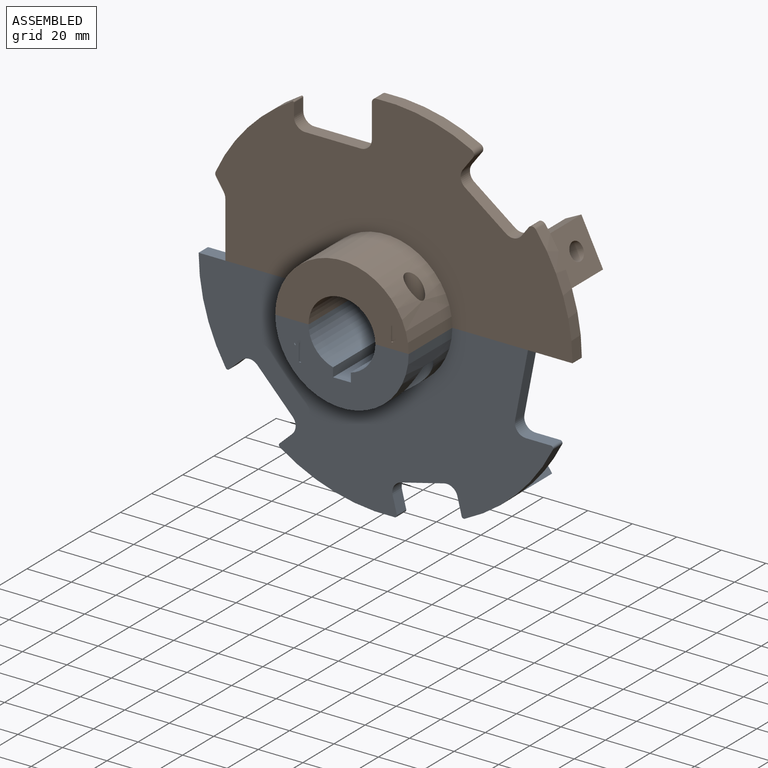
[diagram: assembled view]
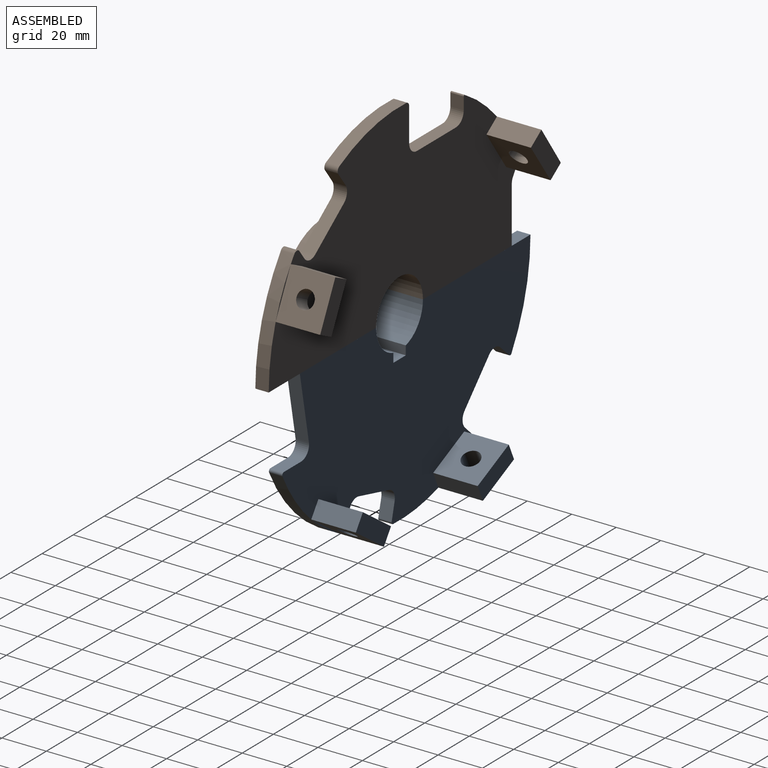
[diagram: assembled view, second angle]
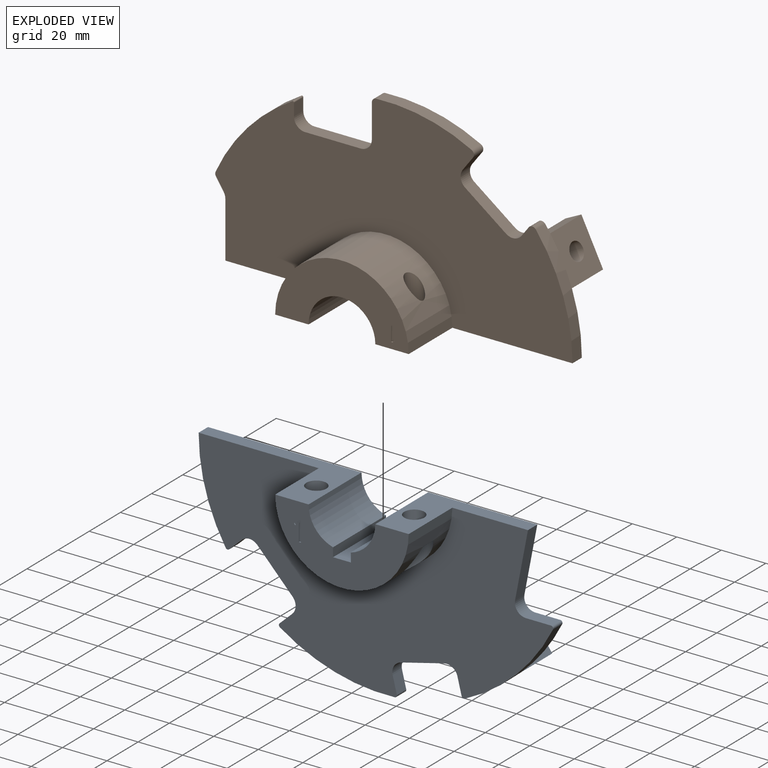
[diagram: exploded view]
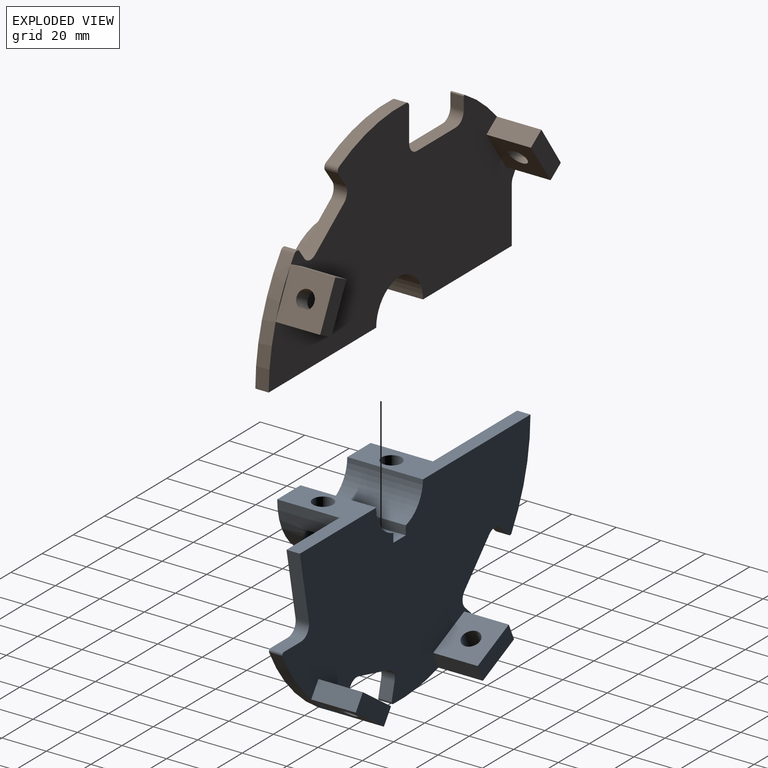
[diagram: exploded view, second angle]
ASSEMBLY  parts=2 mates=3
PART A: 62 faces, bbox 159.3x54x84 mm
  f0: plane 60x30mm, normal (0,-1,0), area 1020.1mm2, adj f1,f15,f16,f17,f18,f19,f20,f21
  f1: cylinder r=30mm len=60mm, axis (0,1,0), area 2160.8mm2, adj f0,f15,f21,f32,f48,f49,f50,f51
  f2: plane 159.3x84mm, normal (0,1,0), area 8660.3mm2, adj f4,f5,f6,f7,f8,f9,f10,f11
  f3: plane 19.97x9.22mm, normal (0,1,0), area 10.6mm2, adj f30,f39
  f4: plane 7.56x6mm, normal (0.97,0,0.24), area 46.8mm2, adj f2,f5,f31,f32
  f5: cylinder r=5mm len=6.06mm, axis (0,1,0), area 47.1mm2, adj f2,f4,f6,f32
  f6: plane 19.41x6mm, normal (0.24,0,-0.97), area 120mm2, adj f2,f5,f7,f32
  f7: cylinder r=5mm len=6.06mm, axis (0,1,0), area 47.1mm2, adj f2,f6,f8,f32
  f8: plane 7.56x6mm, normal (-0.97,0,-0.24), area 46.8mm2, adj f2,f7,f9,f32
  f9: cylinder r=1mm len=6mm, axis (0,1,0), area 10.6mm2, adj f2,f8,f10,f32
  f10: cylinder r=84mm len=39.61mm, axis (0,1,0), area 338.4mm2, adj f2,f9,f11,f32,f33
  f11: cylinder r=1mm len=6mm, axis (0,1,0), area 12.2mm2, adj f2,f10,f12,f32
  f12: plane 11.19x6mm, normal (0,0,1), area 67.1mm2, adj f2,f11,f13,f32
  f13: cylinder r=5mm len=6mm, axis (0,1,0), area 52.8mm2, adj f2,f12,f14,f32
  f14: plane 30.05x6mm, normal (0.98,0,-0.19), area 183.6mm2, adj f2,f13,f15,f32
  f15: plane 49x34mm, normal (0,0,1), area 650.4mm2, adj f0,f1,f2,f14,f16,f32,f47
  f16: cylinder r=15mm len=34mm, axis (0,1,0), area 663.4mm2, adj f0,f2,f15,f17
  f17: plane 34x4.04mm, normal (-1,0,0), area 137.5mm2, adj f0,f2,f16,f18
  f18: plane 34x8mm, normal (0,0,1), area 272mm2, adj f0,f2,f17,f19
  f19: plane 34x4.04mm, normal (1,0,0), area 137.5mm2, adj f0,f2,f18,f20
  f20: cylinder r=15mm len=34mm, axis (0,1,0), area 663.4mm2, adj f0,f2,f19,f21
  f21: plane 69x34mm, normal (0,0,1), area 770.4mm2, adj f0,f1,f2,f20,f22,f32,f46
  f22: cylinder r=84mm len=43.53mm, axis (0,1,0), area 274.6mm2, adj f2,f21,f23,f32
  f23: cylinder r=1mm len=6mm, axis (0,1,0), area 10.7mm2, adj f2,f22,f24,f32
  f24: plane 6x5.65mm, normal (0.69,0,-0.73), area 46.6mm2, adj f2,f23,f25,f32
  f25: cylinder r=5mm len=7.07mm, axis (0,1,0), area 47.1mm2, adj f2,f24,f26,f32
  f26: plane 16.72x15.8mm, normal (-0.73,0,-0.69), area 138mm2, adj f2,f25,f27,f32
  f27: cylinder r=5mm len=7.07mm, axis (0,1,0), area 47.1mm2, adj f2,f26,f28,f32
  f28: plane 6x5.65mm, normal (-0.69,0,0.73), area 46.6mm2, adj f2,f27,f29,f32
  f29: cylinder r=1mm len=6mm, axis (0,1,0), area 10.7mm2, adj f2,f28,f30,f32
  f30: cylinder r=84mm len=51.65mm, axis (0,1,0), area 327.9mm2, adj f2,f3,f29,f31,f32
  f31: cylinder r=1mm len=6mm, axis (0,1,0), area 10.6mm2, adj f2,f4,f30,f32
  f32: plane 159.3x84mm, normal (0,-1,0), area 8002.7mm2, adj f1,f4,f5,f6,f7,f8,f9,f10
  f33: plane 18.04x12.59mm, normal (0,1,0), area 10.6mm2, adj f10,f35
  f34: plane 20x6.56mm, normal (0.82,0,0.57), area 160mm2, adj f2,f35,f37,f38
  f35: plane 20x18.04mm, normal (0.57,0,-0.82), area 389.7mm2, adj f33,f34,f36,f38,f44
  f36: plane 20x6.56mm, normal (-0.82,0,-0.57), area 160mm2, adj f2,f35,f37,f38
  f37: plane 20x18.04mm, normal (-0.57,0,0.82), area 389.7mm2, adj f2,f34,f36,f38,f44
  f38: plane 22.62x19.15mm, normal (0,1,0), area 176mm2, adj f34,f35,f36,f37
  f39: plane 20x19.97mm, normal (-0.42,0,-0.91), area 389.7mm2, adj f3,f40,f42,f43,f45
  f40: plane 20x7.26mm, normal (-0.91,0,0.42), area 160mm2, adj f2,f39,f41,f43
  f41: plane 20x19.97mm, normal (0.42,0,0.91), area 389.7mm2, adj f2,f40,f42,f43,f45
  f42: plane 20x7.26mm, normal (0.91,0,-0.42), area 160mm2, adj f2,f39,f41,f43
  f43: plane 23.33x16.48mm, normal (0,1,0), area 176mm2, adj f39,f40,f41,f42
  f44: cylinder r=4mm len=11.14mm, axis (0.57,0,-0.82), area 201.1mm2, adj f35,f37
  f45: cylinder r=4mm len=10.62mm, axis (-0.42,0,-0.91), area 201.1mm2, adj f39,f41
  f46: cylinder r=4.5mm len=10mm, axis (0,0,1), area 282.7mm2, adj f21,f51
  f47: cylinder r=4.5mm len=10mm, axis (0,0,1), area 282.7mm2, adj f15,f49
  f48: cylinder r=7mm len=15.98mm, axis (0,0,1), area 395.8mm2, adj f1,f49
  f49: plane 14x13.28mm, normal (0,0,-1), area 87.3mm2, adj f1,f47,f48
  f50: cylinder r=7mm len=15.98mm, axis (0,0,1), area 395.6mm2, adj f1,f51
  f51: plane 14x13.28mm, normal (0,0,-1), area 87.3mm2, adj f1,f46,f50
  f52: plane 0.98x0.5mm, normal (0,0,1), area 0.5mm2, adj f0,f53,f60,f61
  f53: plane 8.85x0.5mm, normal (-1,0,0), area 4.4mm2, adj f0,f52,f54,f61
  f54: plane 0.85x0.5mm, normal (0,0,-1), area 0.4mm2, adj f0,f53,f55,f61
  f55: plane 2.34x1.81mm, normal (0.61,0,-0.79), area 1.5mm2, adj f0,f54,f56,f61
  f56: plane 0.69x0.53mm, normal (0.79,0,0.61), area 0.4mm2, adj f0,f55,f57,f61
  f57: extruded ~1.44x1.18mm, area 0.9mm2, adj f0,f56,f58,f61
  f58: extruded ~0.5x0.28mm, area 0.2mm2, adj f0,f57,f59,f61
  f59: extruded ~1.49x0.5mm, area 0.7mm2, adj f0,f58,f60,f61
  f60: plane 6.31x0.5mm, normal (1,0,0), area 3.2mm2, adj f0,f52,f59,f61
  f61: plane 8.85x3.19mm, normal (0,-1,0), area 10.7mm2, adj f52,f53,f54,f55,f56,f57,f58,f59
PART B: 54 faces, bbox 160.6x54x84 mm
  f0: plane 60x30mm, normal (0,-1,0), area 1054.3mm2, adj f1,f20,f21,f22,f44,f45,f46,f47
  f1: cylinder r=30mm len=60mm, axis (0,1,0), area 2486.9mm2, adj f0,f20,f22,f28,f42,f43
  f2: plane 160.54x84mm, normal (0,1,0), area 8928.9mm2, adj f4,f5,f6,f7,f8,f9,f10,f11
  f3: plane 19.73x9.74mm, normal (0,1,0), area 10.6mm2, adj f23,f35
  f4: cylinder r=5mm len=7mm, axis (0,1,0), area 47.1mm2, adj f2,f5,f27,f28
  f5: plane 6.14x6mm, normal (-0.8,0,0.6), area 46mm2, adj f2,f4,f6,f28
  f6: cylinder r=2mm len=6mm, axis (0,1,0), area 20.8mm2, adj f2,f5,f7,f28
  f7: cylinder r=84mm len=42.91mm, axis (0,1,0), area 266.5mm2, adj f2,f6,f8,f28
  f8: cylinder r=2mm len=6mm, axis (0,1,0), area 18.2mm2, adj f2,f7,f9,f28
  f9: plane 15.12x6mm, normal (1,0,0), area 90.7mm2, adj f2,f8,f10,f28
  f10: cylinder r=5mm len=6mm, axis (0,1,0), area 47.1mm2, adj f2,f9,f11,f28
  f11: plane 25x6mm, normal (0,0,-1), area 150mm2, adj f2,f10,f12,f28
  f12: cylinder r=5mm len=6mm, axis (0,1,0), area 47.1mm2, adj f2,f11,f13,f28
  f13: plane 6x5.59mm, normal (-1,0,0), area 33.5mm2, adj f2,f12,f14,f28
  f14: cylinder r=0.5mm len=6mm, axis (0,1,0), area 6.3mm2, adj f2,f13,f15,f28
  f15: cylinder r=84mm len=37.79mm, axis (0,1,0), area 311.7mm2, adj f2,f14,f16,f28,f29
  f16: cylinder r=2mm len=6mm, axis (0,1,0), area 12.1mm2, adj f2,f15,f17,f28
  f17: plane 6x5.27mm, normal (0.84,0,0.54), area 37.6mm2, adj f2,f16,f18,f28
  f18: cylinder r=5mm len=6mm, axis (0,1,0), area 17.3mm2, adj f2,f17,f19,f28
  f19: plane 25.1x6mm, normal (1,0,0), area 150.6mm2, adj f2,f18,f20,f28
  f20: plane 57x34mm, normal (0,0,1), area 711.7mm2, adj f0,f1,f2,f19,f21,f28,f43
  f21: cylinder r=15mm len=34mm, axis (0,1,0), area 1602.2mm2, adj f0,f2,f20,f22
  f22: plane 69x34mm, normal (0,0,1), area 783.7mm2, adj f0,f1,f2,f21,f23,f28,f42
  f23: cylinder r=84mm len=49.95mm, axis (0,1,0), area 320.9mm2, adj f2,f3,f22,f24,f28
  f24: cylinder r=2mm len=6mm, axis (0,1,0), area 22.3mm2, adj f2,f23,f25,f28
  f25: plane 6x4.29mm, normal (0.8,0,-0.6), area 32.2mm2, adj f2,f24,f26,f28
  f26: cylinder r=5mm len=7mm, axis (0,1,0), area 47.1mm2, adj f2,f25,f27,f28
  f27: plane 18.4x13.8mm, normal (-0.6,0,-0.8), area 138mm2, adj f2,f4,f26,f28
  f28: plane 160.54x84mm, normal (0,-1,0), area 8244.6mm2, adj f1,f4,f5,f6,f7,f8,f9,f10
  f29: plane 18.15x12.44mm, normal (0,1,0), area 10.6mm2, adj f15,f31
  f30: plane 20x6.55mm, normal (0.57,0,0.82), area 160mm2, adj f2,f31,f33,f34
  f31: plane 20x18.15mm, normal (0.82,0,-0.57), area 389.8mm2, adj f29,f30,f32,f34,f40
  f32: plane 20x6.76mm, normal (-0.57,0,-0.82), area 165.1mm2, adj f2,f31,f33,f34
  f33: plane 20.02x18.02mm, normal (-0.82,0,0.57), area 389.7mm2, adj f2,f30,f32,f34,f40
  f34: plane 22.75x19.19mm, normal (0,1,0), area 178.8mm2, adj f30,f31,f32,f33
  f35: plane 20x19.73mm, normal (-0.9,0,-0.44), area 389.7mm2, adj f3,f36,f38,f39,f41
  f36: plane 20x7.17mm, normal (-0.44,0,0.9), area 160mm2, adj f2,f35,f37,f39
  f37: plane 20x19.73mm, normal (0.9,0,0.44), area 389.7mm2, adj f2,f36,f38,f39,f41
  f38: plane 20x7.17mm, normal (0.44,0,-0.9), area 160mm2, adj f2,f35,f37,f39
  f39: plane 23.27x16.91mm, normal (0,1,0), area 176mm2, adj f35,f36,f37,f38
  f40: cylinder r=4mm len=11.27mm, axis (0.82,0,-0.57), area 204.3mm2, adj f31,f33
  f41: cylinder r=4mm len=10.72mm, axis (-0.9,0,-0.44), area 201.1mm2, adj f35,f37
  f42: cylinder r=4mm len=24mm, axis (0,0,1), area 501.4mm2, adj f1,f22
  f43: cylinder r=4mm len=24mm, axis (0,0,1), area 501.3mm2, adj f1,f20
  f44: plane 0.74x0.5mm, normal (0,0,1), area 0.4mm2, adj f0,f45,f52,f53
  f45: plane 6.64x0.5mm, normal (-1,0,0), area 3.3mm2, adj f0,f44,f46,f53
  f46: plane 0.64x0.5mm, normal (0,0,-1), area 0.3mm2, adj f0,f45,f47,f53
  f47: plane 1.76x1.36mm, normal (0.61,0,-0.79), area 1.1mm2, adj f0,f46,f48,f53
  f48: plane 0.52x0.5mm, normal (0.79,0,0.61), area 0.3mm2, adj f0,f47,f49,f53
  f49: extruded ~1.08x0.89mm, area 0.7mm2, adj f0,f48,f50,f53
  f50: extruded ~0.5x0.21mm, area 0.1mm2, adj f0,f49,f51,f53
  f51: extruded ~1.12x0.5mm, area 0.6mm2, adj f0,f50,f52,f53
  f52: plane 4.73x0.5mm, normal (1,0,0), area 2.4mm2, adj f0,f44,f51,f53
  f53: plane 6.64x2.39mm, normal (0,-1,0), area 6mm2, adj f44,f45,f46,f47,f48,f49,f50,f51
PLACE A t=(-144.5,-14.44,24.68)mm fixed
PLACE B rot(axis=(0,1,0),180deg) t=(-144.5,-14.44,24.68)mm
MATE planar B.f43 <-> A.f21  axis (0,0,-1) through (-166.5,-33.44,24.68)mm
MATE cylindrical B.f42 <-> A.f47  axis (0,0,-1) through (-122.5,-33.44,24.68)mm
MATE slider A.f46 <-> B.f43  axis (0,0,1) through (-166.5,-33.44,24.68)mm
